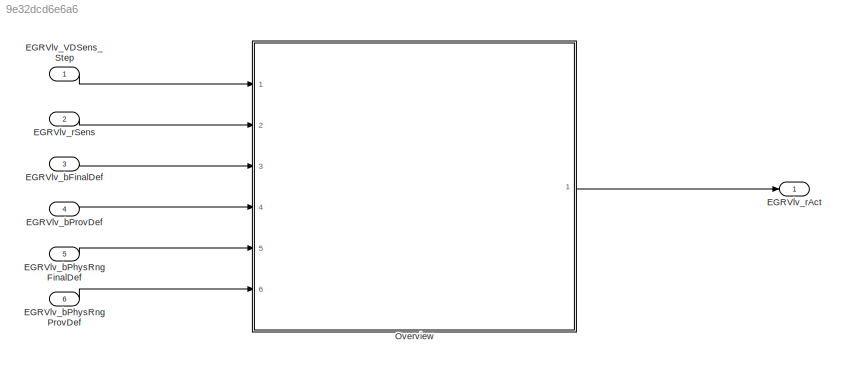
MODEL slx_9e32dcd6e6a6
KIND model
CONFIG AbsTol = auto
CONFIG EnableMultiTasking = off
CONFIG FixedStep = 0.001
CONFIG MaxStep = auto
CONFIG MinStep = auto
CONFIG RelTol = 1e-3
CONFIG SampleTimeConstraint = Unconstrained
CONFIG SolverName = FixedStepDiscrete
CONFIG StartTime = 0.0
CONFIG StopTime = Inf
WORKSPACE source: mxarray member
WORKSPACE EGRVlv_VDSens_DT = 10
BLOCK [Inport] EGRVlv_VDSens_Step
  OutputFunctionCall = on
BLOCK [Inport] EGRVlv_bFinalDef
  Description = the final fault flag
  OutDataTypeStr = boolean
  OutMax = 1
  OutMin = 0
  Port = 3
  PortDimensions = [1 1]
BLOCK [Inport] EGRVlv_bPhysRngFinalDef
  Description = Status Sensor of the EGR valve physical Signal range check finally defect
  OutDataTypeStr = boolean
  OutMax = 1
  OutMin = 0
  Port = 5
  PortDimensions = [1 1]
BLOCK [Inport] EGRVlv_bPhysRngProvDef
  Description = Status Sensor of the EGR valve physical Signal range check temporary defect
  OutDataTypeStr = boolean
  OutMax = 1
  OutMin = 0
  Port = 6
  PortDimensions = [1 1]
BLOCK [Inport] EGRVlv_bProvDef
  Description = the fault flag for the moment
  OutDataTypeStr = boolean
  OutMax = 1
  OutMin = 0
  Port = 4
  PortDimensions = [1 1]
BLOCK [Outport] EGRVlv_rAct
  Description = Actuatorposition
  OutDataTypeStr = DutyCycle
  OutMax = 100
  OutMin = -100
  PortDimensions = [1 1]
  Unit = %
BLOCK [Inport] EGRVlv_rSens
  Description = Sensed value of actuator position without error handling
  OutDataTypeStr = DutyCycle
  OutMax = 100
  OutMin = -100
  Port = 2
  PortDimensions = [1 1]
  Unit = %
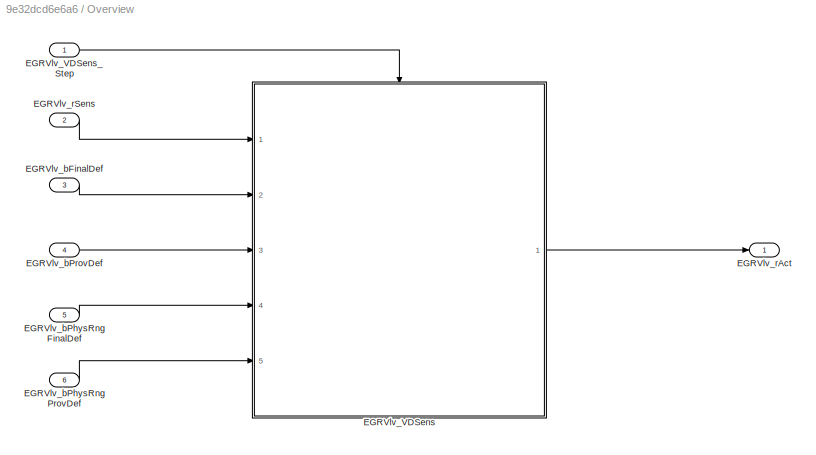
BLOCK [SubSystem] Overview
  Ports = [6, 1]
  RequestExecContextInheritance = off
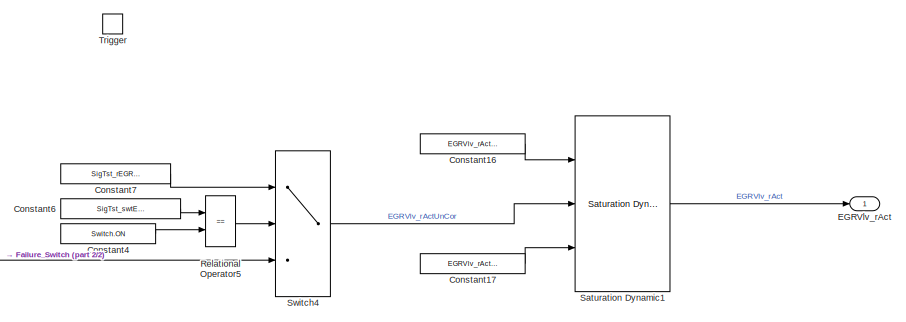
[diagram: Overview/EGRVlv_VDSens - part 1/2, middle right region]
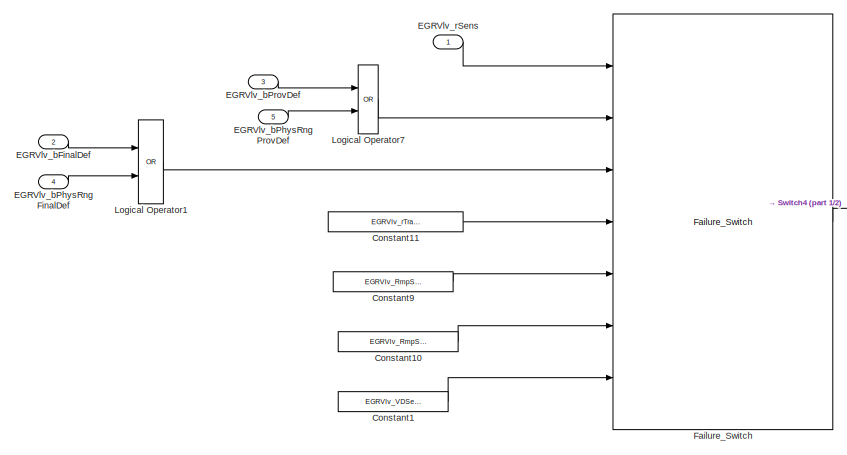
[diagram: Overview/EGRVlv_VDSens - part 2/2, left side, full height]
BLOCK [SubSystem] Overview/EGRVlv_VDSens
  Ports = [5, 1, 0, 1]
  RequestExecContextInheritance = off
BLOCK [Constant] Overview/EGRVlv_VDSens/Constant1
  OutDataTypeStr = Inherit: Inherit via back propagation
  Value = EGRVlv_VDSens_DT
BLOCK [Constant] Overview/EGRVlv_VDSens/Constant10
  SampleTime = -1
  Value = EGRVlv_RmpSlpNeg_C
BLOCK [Constant] Overview/EGRVlv_VDSens/Constant11
  SampleTime = -1
  Value = EGRVlv_rTransStgDfl_C
BLOCK [Constant] Overview/EGRVlv_VDSens/Constant16
  SampleTime = -1
  Value = EGRVlv_rActMax_C
BLOCK [Constant] Overview/EGRVlv_VDSens/Constant17
  SampleTime = -1
  Value = EGRVlv_rActMin_C
BLOCK [Constant] Overview/EGRVlv_VDSens/Constant4
  Value = Switch.ON
BLOCK [Constant] Overview/EGRVlv_VDSens/Constant6
  SampleTime = -1
  Value = SigTst_swtEGRVlv_C
BLOCK [Constant] Overview/EGRVlv_VDSens/Constant7
  SampleTime = -1
  Value = SigTst_rEGRVlv_C
BLOCK [Constant] Overview/EGRVlv_VDSens/Constant9
  SampleTime = -1
  Value = EGRVlv_RmpSlpPos_C
BLOCK [Inport] Overview/EGRVlv_VDSens/EGRVlv_bFinalDef
  Port = 2
BLOCK [Inport] Overview/EGRVlv_VDSens/EGRVlv_bPhysRngFinalDef
  Port = 4
BLOCK [Inport] Overview/EGRVlv_VDSens/EGRVlv_bPhysRngProvDef
  Port = 5
BLOCK [Inport] Overview/EGRVlv_VDSens/EGRVlv_bProvDef
  Port = 3
BLOCK [Outport] Overview/EGRVlv_VDSens/EGRVlv_rAct
  Tag = %
  VectorParamsAs1DForOutWhenUnconnected = off
BLOCK [Inport] Overview/EGRVlv_VDSens/EGRVlv_rSens
  Tag = %
BLOCK [Reference] Overview/EGRVlv_VDSens/Failure_Switch  REF=sllib/Fault Manager/Failure_Switch  (lib defined in slx_2b0aa6d284ff)
  Ports = [7, 1]
  SourceBlock = sllib/Fault Manager/Failure_Switch
  SourceProductName = sllib
  SourceType = Failure_Switch
BLOCK [Logic] Overview/EGRVlv_VDSens/Logical Operator1
  Operator = OR
  OutDataTypeStr = boolean
  Ports = [2, 1]
BLOCK [Logic] Overview/EGRVlv_VDSens/Logical Operator7
  Operator = OR
  OutDataTypeStr = boolean
  Ports = [2, 1]
BLOCK [RelationalOperator] Overview/EGRVlv_VDSens/Relational Operator5
  Operator = ==
  OutDataTypeStr = boolean
  Ports = [2, 1]
  RndMeth = Simplest
BLOCK [Reference] Overview/EGRVlv_VDSens/Saturation Dynamic1  REF=simulink/Discontinuities/Saturation
Dynamic
  Ports = [3, 1]
  SourceBlock = simulink/Discontinuities/Saturation\nDynamic
  SourceProductBaseCode = SL
  SourceType = Saturation Dynamic
BLOCK [Switch] Overview/EGRVlv_VDSens/Switch4
  Criteria = u2 ~= 0
  SaturateOnIntegerOverflow = off
  Threshold = CEngDst_switch_conv.OFF
BLOCK [TriggerPort] Overview/EGRVlv_VDSens/Trigger
  PortDimensions = 1
  Ports = []
  StatesWhenEnabling = held
  TriggerType = function-call
  VariantControl = Variant
BLOCK [Inport] Overview/EGRVlv_VDSens_Step
BLOCK [Inport] Overview/EGRVlv_bFinalDef
  Port = 3
BLOCK [Inport] Overview/EGRVlv_bPhysRngFinalDef
  Port = 5
BLOCK [Inport] Overview/EGRVlv_bPhysRngProvDef
  Port = 6
BLOCK [Inport] Overview/EGRVlv_bProvDef
  Port = 4
BLOCK [Outport] Overview/EGRVlv_rAct
  VectorParamsAs1DForOutWhenUnconnected = off
BLOCK [Inport] Overview/EGRVlv_rSens
  Port = 2
LINE EGRVlv_VDSens_Step:1 -> Overview:1
LINE EGRVlv_bFinalDef:1 -> Overview:3
LINE EGRVlv_bPhysRngFinalDef:1 -> Overview:5
LINE EGRVlv_bPhysRngProvDef:1 -> Overview:6
LINE EGRVlv_bProvDef:1 -> Overview:4
LINE EGRVlv_rSens:1 -> Overview:2
LINE Overview/EGRVlv_VDSens/Constant10:1 -> Overview/EGRVlv_VDSens/Failure_Switch:6
LINE Overview/EGRVlv_VDSens/Constant11:1 -> Overview/EGRVlv_VDSens/Failure_Switch:4
LINE Overview/EGRVlv_VDSens/Constant16:1 -> Overview/EGRVlv_VDSens/Saturation Dynamic1:1
LINE Overview/EGRVlv_VDSens/Constant17:1 -> Overview/EGRVlv_VDSens/Saturation Dynamic1:3
LINE Overview/EGRVlv_VDSens/Constant1:1 -> Overview/EGRVlv_VDSens/Failure_Switch:7
LINE Overview/EGRVlv_VDSens/Constant4:1 -> Overview/EGRVlv_VDSens/Relational Operator5:2
LINE Overview/EGRVlv_VDSens/Constant6:1 -> Overview/EGRVlv_VDSens/Relational Operator5:1
LINE Overview/EGRVlv_VDSens/Constant7:1 -> Overview/EGRVlv_VDSens/Switch4:1
LINE Overview/EGRVlv_VDSens/Constant9:1 -> Overview/EGRVlv_VDSens/Failure_Switch:5
LINE Overview/EGRVlv_VDSens/EGRVlv_bFinalDef:1 -> Overview/EGRVlv_VDSens/Logical Operator1:1
LINE Overview/EGRVlv_VDSens/EGRVlv_bPhysRngFinalDef:1 -> Overview/EGRVlv_VDSens/Logical Operator1:2
LINE Overview/EGRVlv_VDSens/EGRVlv_bPhysRngProvDef:1 -> Overview/EGRVlv_VDSens/Logical Operator7:2
LINE Overview/EGRVlv_VDSens/EGRVlv_bProvDef:1 -> Overview/EGRVlv_VDSens/Logical Operator7:1
LINE Overview/EGRVlv_VDSens/EGRVlv_rSens:1 -> Overview/EGRVlv_VDSens/Failure_Switch:1
LINE Overview/EGRVlv_VDSens/Failure_Switch:1 -> Overview/EGRVlv_VDSens/Switch4:3
LINE Overview/EGRVlv_VDSens/Logical Operator1:1 -> Overview/EGRVlv_VDSens/Failure_Switch:3
LINE Overview/EGRVlv_VDSens/Logical Operator7:1 -> Overview/EGRVlv_VDSens/Failure_Switch:2
LINE Overview/EGRVlv_VDSens/Relational Operator5:1 -> Overview/EGRVlv_VDSens/Switch4:2
LINE Overview/EGRVlv_VDSens/Saturation Dynamic1:1 -> Overview/EGRVlv_VDSens/EGRVlv_rAct:1
LINE Overview/EGRVlv_VDSens/Switch4:1 -> Overview/EGRVlv_VDSens/Saturation Dynamic1:2
LINE Overview/EGRVlv_VDSens:1 -> Overview/EGRVlv_rAct:1
LINE Overview/EGRVlv_VDSens_Step:1 -> Overview/EGRVlv_VDSens:trigger
LINE Overview/EGRVlv_bFinalDef:1 -> Overview/EGRVlv_VDSens:2
LINE Overview/EGRVlv_bPhysRngFinalDef:1 -> Overview/EGRVlv_VDSens:4
LINE Overview/EGRVlv_bPhysRngProvDef:1 -> Overview/EGRVlv_VDSens:5
LINE Overview/EGRVlv_bProvDef:1 -> Overview/EGRVlv_VDSens:3
LINE Overview/EGRVlv_rSens:1 -> Overview/EGRVlv_VDSens:1
LINE Overview:1 -> EGRVlv_rAct:1
